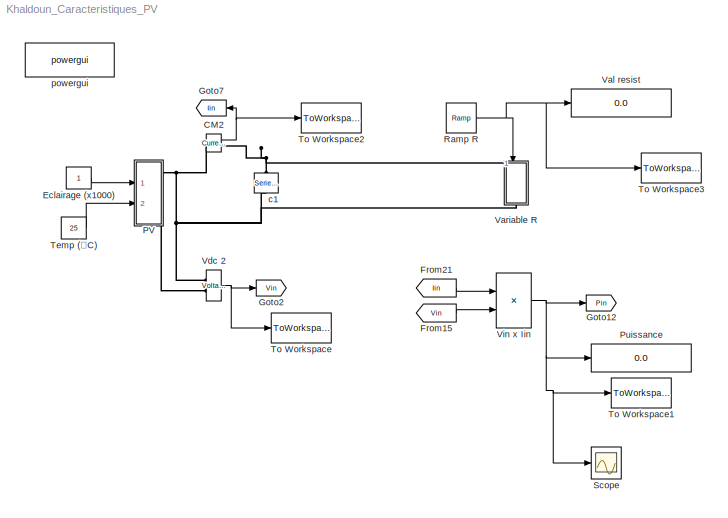
MODEL Khaldoun_Caracteristiques_PV
KIND model
BLOCK [Reference] CM2  REF=powerlib/Measurements/Current Measurement
  AttributesFormatString = \\n
  OutputType = Magnitude
  PSBequivalent = 0
  PhasorSimulation = off
  Ports = [0, 1, 0, 0, 0, 1, 1]
  SID = 16
  SourceBlock = powerlib/Measurements/Current Measurement
  SourceType = Current Measurement
  Tag = PoWeRsYsTeMmEaSuReMeNt
BLOCK [Constant] Eclairage (x1000)
  SID = 10
BLOCK [From] From15
  GotoTag = Vin
  SID = 17
  TagVisibility = global
BLOCK [From] From21
  GotoTag = Iin
  SID = 18
  TagVisibility = global
BLOCK [Goto] Goto12
  GotoTag = Pin
  SID = 19
  TagVisibility = global
BLOCK [Goto] Goto2
  GotoTag = Vin
  SID = 20
  TagVisibility = global
BLOCK [Goto] Goto7
  GotoTag = Iin
  SID = 21
  TagVisibility = global
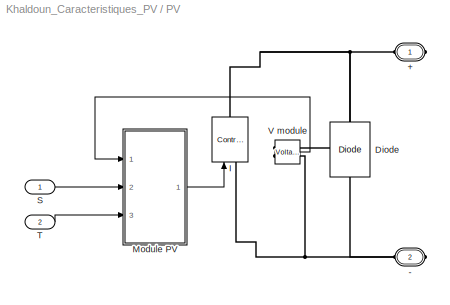
BLOCK [SubSystem] PV 
  Ports = [2, 0, 0, 0, 0, 0, 2]
  RequestExecContextInheritance = off
  SID = 1
BLOCK [PMIOPort] PV /+
  Port = 1
  SID = 12
  Side = Right
  Tag = PMCPort
BLOCK [PMIOPort] PV /-
  Port = 2
  SID = 13
  Side = Right
  Tag = PMCPort
BLOCK [Reference] PV /Diode  REF=powerlib/Power\nElectronics/Diode
  Cs = 250e-9
  IC = 0
  Lon = 0
  Measurements = off
  Ports = [0, 0, 0, 0, 0, 1, 1]
  Ron = 0.001
  Rs = 500
  SID = 3
  SourceBlock = powerlib/Power\nElectronics/Diode
  SourceType = Diode
  UseSnubber = off
  Vf = 0
BLOCK [Reference] PV /I  REF=powerlib/Electrical\nSources/Controlled Current Source
  Amplitude = 0
  Frequency = 0
  Initialize = on
  Measurements = None
  Phase = 0
  Ports = [1, 0, 0, 0, 0, 1, 1]
  SID = 2
  SourceBlock = powerlib/Electrical\nSources/Controlled Current Source
  SourceType = Controlled Current Source
  Source_Type = AC
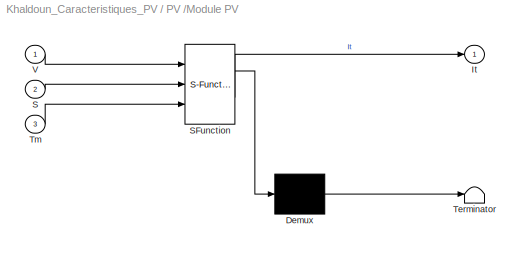
BLOCK [SubSystem] PV /Module PV
  ErrorFcn = Stateflow.Translate.translate
  PermitHierarchicalResolution = ExplicitOnly
  Ports = [3, 1]
  RequestExecContextInheritance = off
  SFBlockType = MATLAB Function
  SID = 6
  TreatAsAtomicUnit = on
BLOCK [Demux] PV /Module PV/ Demux 
  Outputs = 1
  Ports = [1, 1]
  SID = 6::17
BLOCK [S-Function] PV /Module PV/ SFunction 
  EnableBusSupport = on
  FunctionName = sf_sfun
  PortCounts = [3 2]
  Ports = [3, 2]
  SID = 6::16
  Tag = Stateflow S-Function Khaldoun_Caracteristiques_PV 1
BLOCK [Terminator] PV /Module PV/ Terminator 
  SID = 6::18
BLOCK [Outport] PV /Module PV/It
  IconDisplay = Port number
  SID = 6::7
BLOCK [Inport] PV /Module PV/S
  IconDisplay = Port number
  Port = 2
  SID = 6::2
BLOCK [Inport] PV /Module PV/Tm
  IconDisplay = Port number
  Port = 3
  SID = 6::3
BLOCK [Inport] PV /Module PV/V
  IconDisplay = Port number
  SID = 6::1
BLOCK [Inport] PV /S
  IconDisplay = Port number
  SID = 82
BLOCK [Inport] PV /T
  IconDisplay = Port number
  Port = 2
  SID = 83
BLOCK [Reference] PV /V module  REF=powerlib/Measurements/Voltage Measurement
  OutputType = Complex
  PSBequivalent = 0
  PhasorSimulation = off
  Ports = [0, 1, 0, 0, 0, 2]
  SID = 11
  SourceBlock = powerlib/Measurements/Voltage Measurement
  SourceType = Voltage Measurement
BLOCK [Display] Puissance
  Decimation = 100
  Format = bank
  Ports = [1]
  SID = 22
BLOCK [Reference] Ramp R  REF=simulink/Sources/Ramp
  Ports = [0, 1]
  SID = 61
  SourceBlock = simulink/Sources/Ramp
  SourceType = Ramp
  VectorParams1D = on
  X0 = 2
  slope = 200000
  start = 0
BLOCK [Scope] Scope
  Floating = off
  LimitDataPoints = off
  NumInputPorts = 1
  Ports = [1]
  SID = 86
BLOCK [Constant] Temp (°C)
  SID = 84
  Value = 25
BLOCK [ToWorkspace] To Workspace
  MaxDataPoints = inf
  Ports = [1]
  SID = 62
  SampleTime = -1
  VariableName = Vpv
BLOCK [ToWorkspace] To Workspace1
  MaxDataPoints = inf
  Ports = [1]
  SID = 63
  SampleTime = -1
  VariableName = Ppv
BLOCK [ToWorkspace] To Workspace2
  MaxDataPoints = inf
  Ports = [1]
  SID = 85
  SampleTime = -1
  VariableName = Ipv
BLOCK [ToWorkspace] To Workspace3
  MaxDataPoints = inf
  Ports = [1]
  SID = 87
  SampleTime = -1
  VariableName = Rout
BLOCK [Display] Val resist
  Decimation = 100
  Format = bank
  Ports = [1]
  SID = 60
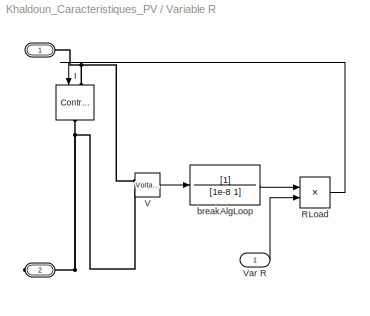
BLOCK [SubSystem] Variable R
  Ports = [1, 0, 0, 0, 0, 1, 1]
  RequestExecContextInheritance = off
  SID = 64
BLOCK [PMIOPort] Variable R/ 
  Port = 1
  SID = 70
  Side = Left
BLOCK [PMIOPort] Variable R/   
  Port = 2
  SID = 71
  Side = Right
BLOCK [Reference] Variable R/I  REF=powerlib/Electrical\nSources/Controlled Current Source
  Amplitude = 0
  Frequency = 0
  Initialize = on
  Measurements = None
  Phase = 0
  Ports = [1, 0, 0, 0, 0, 1, 1]
  SID = 66
  SourceBlock = powerlib/Electrical\nSources/Controlled Current Source
  SourceType = Controlled Current Source
  Source_Type = DC
BLOCK [Product] Variable R/RLoad
  InputSameDT = off
  Inputs = */
  OutDataTypeStr = Inherit: Inherit via internal rule
  Ports = [2, 1]
  SID = 67
  SaturateOnIntegerOverflow = off
BLOCK [Reference] Variable R/V  REF=powerlib/Measurements/Voltage Measurement
  OutputType = Complex
  PSBequivalent = 0
  PhasorSimulation = off
  Ports = [0, 1, 0, 0, 0, 2]
  SID = 68
  SourceBlock = powerlib/Measurements/Voltage Measurement
  SourceType = Voltage Measurement
BLOCK [Inport] Variable R/Var R
  IconDisplay = Port number
  SID = 65
BLOCK [TransferFcn] Variable R/breakAlgLoop
  Denominator = [1e-8 1]
  SID = 69
BLOCK [Reference] Vdc 2  REF=powerlib/Measurements/Voltage Measurement
  AttributesFormatString = \\n
  OutputType = Magnitude
  PSBequivalent = 0
  PhasorSimulation = off
  Ports = [0, 1, 0, 0, 0, 2]
  SID = 72
  SourceBlock = powerlib/Measurements/Voltage Measurement
  SourceType = Voltage Measurement
  Tag = PoWeRsYsTeMmEaSuReMeNt
BLOCK [Product] Vin x Iin
  InputSameDT = off
  OutDataTypeStr = Inherit: Inherit via internal rule
  Ports = [2, 1]
  SID = 73
  SaturateOnIntegerOverflow = off
BLOCK [Reference] c1  REF=powerlib/Elements/Series RLC Branch
  BranchType = C
  Capacitance = 3e-6
  Inductance = 1.0
  InitialCurrent = 0
  InitialVoltage = 0
  LConnTagsString = __new0
  Measurements = None
  Ports = [0, 0, 0, 0, 0, 1, 1]
  RConnTagsString = __new0
  Resistance = 0.01
  SID = 75
  SetiL0 = off
  Setx0 = on
  SourceBlock = powerlib/Elements/Series RLC Branch
  SourceType = Series RLC Branch
BLOCK [Reference] powergui  REF=powerlib/powergui
  DisableRonSwitches = off
  DisableSnubberDevices = off
  DisableVfSwitches = off
  DisplayEquations = off
  DisplayStyle = 1
  EnableUseOfTLC = off
  ErrMax = 1e-4
  Frange = [0:2:500]
  FreqAxis = off
  FunctionMessages = off
  HookPort = off
  Interpol = off
  Iterations = 50
  MaxFrequency = 1000
  Pbase = 100e6
  Ports = []
  Priority = 1
  ResistiveCurrentMeasurement = off
  RestoreLinks = warning
  RmsSteady = 1
  SID = 76
  SPID = off
  SampleTime = Ts_Power
  ShowGrid = off
  SolverType = Tustin
  SourceBlock = powerlib/powergui
  SourceType = PSB option menu block
  StartTime = 0.0
  SwTol = 0
  Ts = 0
  UnitsV = kV
  UnitsW = MW
  UserData = DataTag0
  UserDataPersistent = on
  Xlog = on
  Ylog = off
  ZoomFFT = on
  buscounter = 0
  cycles = 1
  display = off
  echomessages = off
  frequency = 60
  frequencyindice = 0
  frequencyindicesteady = 1
  fundamental = 60
  methode = off
  save = off
  structure = 0
  variable = ZData
  x0status = blocks
NET CM2:1 -> Goto7:1, To Workspace2:1
LINE Eclairage (x1000):1 -> PV :1
LINE From15:1 -> Vin x Iin:2
LINE From21:1 -> Vin x Iin:1
LINE PV /Module PV/ Demux :1 -> PV /Module PV/ Terminator :1
LINE PV /Module PV/ SFunction :1 -> PV /Module PV/ Demux :1
LINE PV /Module PV/ SFunction :2 -> PV /Module PV/It:1
LINE PV /Module PV/S:1 -> PV /Module PV/ SFunction :2
LINE PV /Module PV/Tm:1 -> PV /Module PV/ SFunction :3
LINE PV /Module PV/V:1 -> PV /Module PV/ SFunction :1
LINE PV /Module PV:1 -> PV /I:1
LINE PV /S:1 -> PV /Module PV:2
LINE PV /T:1 -> PV /Module PV:3
LINE PV /V module:1 -> PV /Module PV:1
NET Ramp R:1 -> To Workspace3:1, Val resist:1, Variable R:1
LINE Temp (°C):1 -> PV :2
LINE Variable R/RLoad:1 -> Variable R/I:1
LINE Variable R/V:1 -> Variable R/breakAlgLoop:1
LINE Variable R/Var R:1 -> Variable R/RLoad:2
LINE Variable R/breakAlgLoop:1 -> Variable R/RLoad:1
NET Vdc 2:1 -> Goto2:1, To Workspace:1
NET Vin x Iin:1 -> Goto12:1, Puissance:1, Scope:1, To Workspace1:1
PNET net1: CM2:LConn1 -- PV :RConn1 -- Vdc 2:LConn1
PNET net2: CM2:RConn1 -- Variable R:LConn1 -- c1:LConn1
PNET net3: PV /+:RConn1 -- PV /Diode:RConn1 -- PV /I:RConn1 -- PV /V module:LConn1
PNET net4: PV /-:RConn1 -- PV /Diode:LConn1 -- PV /I:LConn1 -- PV /V module:LConn2
PNET net5: PV :RConn2 -- Variable R:RConn1 -- Vdc 2:LConn2 -- c1:RConn1
PNET net6: Variable R/   :RConn1 -- Variable R/I:RConn1 -- Variable R/V:LConn2
PNET net7: Variable R/ :RConn1 -- Variable R/I:LConn1 -- Variable R/V:LConn1
note: NET lines group one-source signal fan-out (src -> all destinations, sorted); 1:1 wires keep LINE; PNET lines group multi-terminal physical nets as a canonical sorted terminal list (undirected conserving connections); 2-terminal nets keep the pairwise PLINE form
CHART PV /Module PV states=1 transitions=1
  STATE_LABEL 'eML_blk_kernel()'
